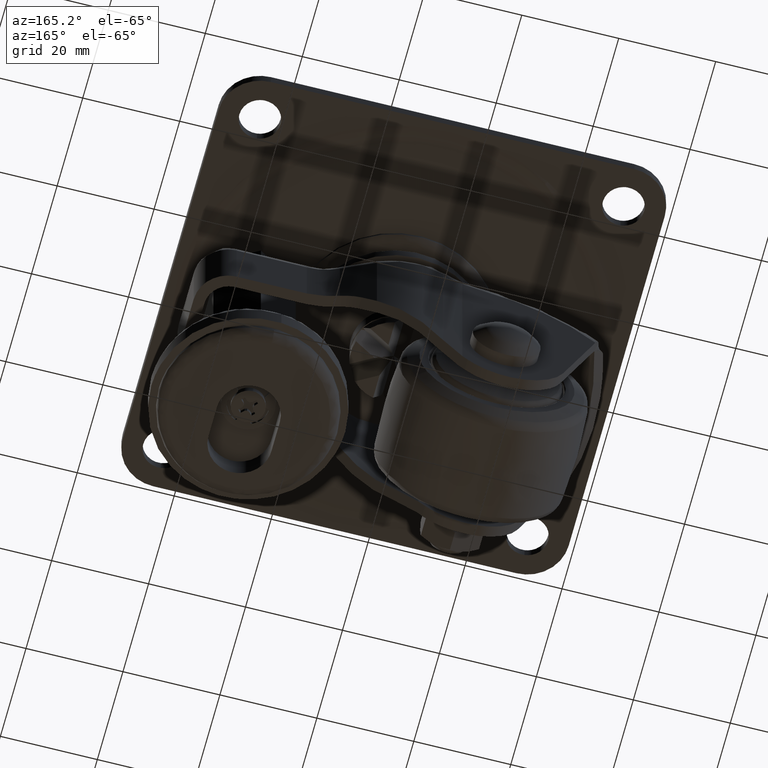
[diagram: clean part render]
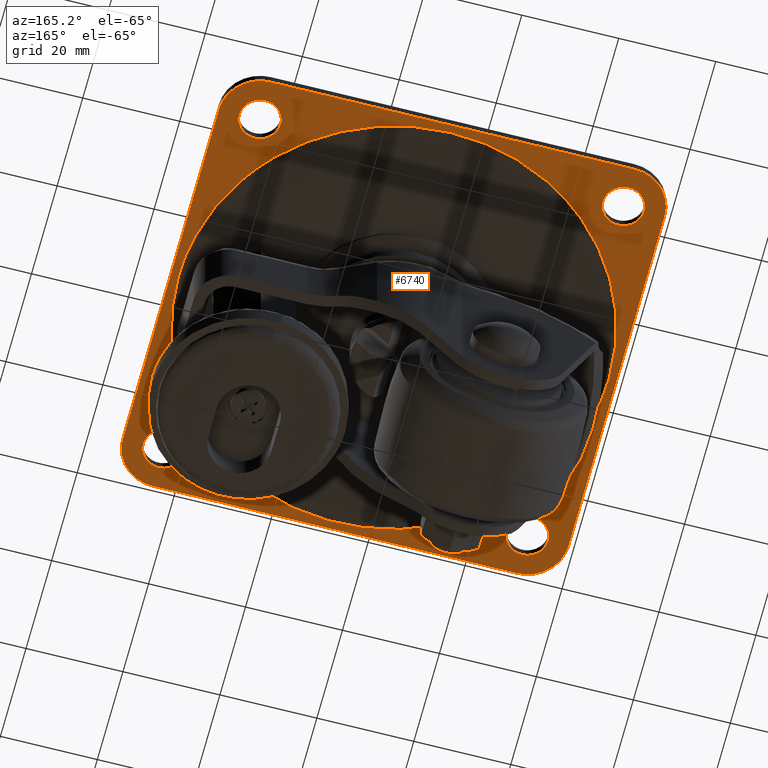
[diagram: same view with one face highlighted and labeled with its STEP entity id]
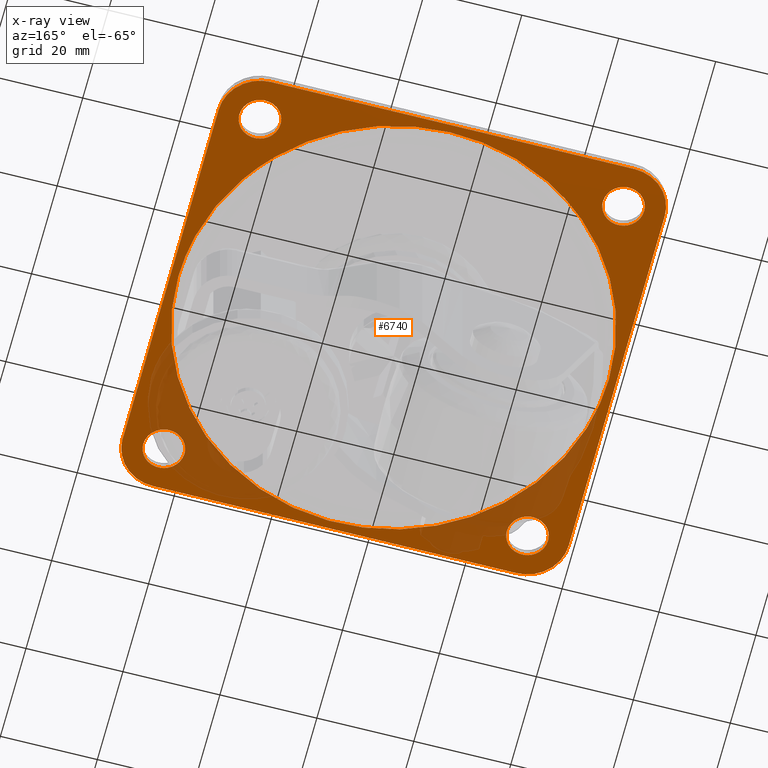
[diagram: x-ray of the same camera — body ghosted, the highlighted face saturated]
A machine part, auxiliary view. The second image highlights one B-rep face of the part: STEP entity #6740.
The next image is the same camera in x-ray: the body ghosted, the highlighted face saturated — about 24% of this face is hidden behind the body in this view.
In plain terms, the highlighted face is a freeform B-spline surface patch.
Its self-contained STEP definition (entity closure, byte-faithful):
#3927=CARTESIAN_POINT('',(-37.240543706807827,41.742072893282597,-2.299999999999971));
#3928=VERTEX_POINT('',#3927);
#3934=CARTESIAN_POINT('',(-33.250000000000000,37.500000000000000,-2.299999999999970));
#3935=VERTEX_POINT('',#3934);
#3936=CARTESIAN_POINT('',(-33.250000000000000,37.500000000000000,-2.299999999999970));
#3937=CARTESIAN_POINT('',(-33.250000000000007,41.498000784030012,-2.299999999999970));
#3938=CARTESIAN_POINT('',(-37.240543706807827,41.742072893282604,-2.299999999999971));
#3946=(BOUNDED_CURVE()B_SPLINE_CURVE(2,(#3936,#3937,#3938),.UNSPECIFIED.,.F.,.U.)B_SPLINE_CURVE_WITH_KNOTS((3,3),(0.500000000000000,0.739332962228218),.UNSPECIFIED.)CURVE()GEOMETRIC_REPRESENTATION_ITEM()RATIONAL_B_SPLINE_CURVE((1.0,0.719603993299275,0.976072041643733))REPRESENTATION_ITEM(''));
#3947=EDGE_CURVE('',#3935,#3928,#3946,.T.);
#3949=CARTESIAN_POINT('',(-38.001645497380359,33.279709512965013,-2.299999999999970));
#3950=VERTEX_POINT('',#3949);
#3951=CARTESIAN_POINT('',(-38.001645497380359,33.279709512965020,-2.299999999999969));
#3952=CARTESIAN_POINT('',(-37.751702508610691,33.250000000000000,-2.299999999999970));
#3953=CARTESIAN_POINT('',(-37.500000000000000,33.250000000000000,-2.299999999999970));
#3954=CARTESIAN_POINT('',(-33.250000000000007,33.250000000000007,-2.299999999999970));
#3955=CARTESIAN_POINT('',(-33.250000000000000,37.500000000000000,-2.299999999999970));
#3963=(BOUNDED_CURVE()B_SPLINE_CURVE(2,(#3951,#3952,#3953,#3954,#3955),.UNSPECIFIED.,.F.,.U.)B_SPLINE_CURVE_WITH_KNOTS((3,2,3),(0.229562473508506,0.250000000000000,0.500000000000000),.UNSPECIFIED.)CURVE()GEOMETRIC_REPRESENTATION_ITEM()RATIONAL_B_SPLINE_CURVE((0.956026754173894,0.976055948325284,1.0,0.707106781186548,1.0))REPRESENTATION_ITEM(''));
#3964=EDGE_CURVE('',#3950,#3935,#3963,.T.);
#4008=CARTESIAN_POINT('',(-41.749999999999993,37.500000000000000,-2.299999999999970));
#4009=VERTEX_POINT('',#4008);
#4010=CARTESIAN_POINT('',(-41.749999999999993,37.500000000000000,-2.299999999999970));
#4011=CARTESIAN_POINT('',(-41.750000000000000,33.725258264867243,-2.299999999999970));
#4012=CARTESIAN_POINT('',(-38.001645497380352,33.279709512965013,-2.299999999999970));
#4020=(BOUNDED_CURVE()B_SPLINE_CURVE(2,(#4010,#4011,#4012),.UNSPECIFIED.,.F.,.U.)B_SPLINE_CURVE_WITH_KNOTS((3,3),(0.0,0.229562473508506),.UNSPECIFIED.)CURVE()GEOMETRIC_REPRESENTATION_ITEM()RATIONAL_B_SPLINE_CURVE((1.0,0.731050832861263,0.956026754173894))REPRESENTATION_ITEM(''));
#4021=EDGE_CURVE('',#4009,#3950,#4020,.T.);
#4023=CARTESIAN_POINT('',(-37.240543706807827,41.742072893282597,-2.299999999999971));
#4024=CARTESIAN_POINT('',(-37.370150755811487,41.749999999999986,-2.299999999999971));
#4025=CARTESIAN_POINT('',(-37.500000000000000,41.749999999999993,-2.299999999999970));
#4026=CARTESIAN_POINT('',(-41.750000000000000,41.750000000000000,-2.299999999999970));
#4027=CARTESIAN_POINT('',(-41.749999999999993,37.500000000000000,-2.299999999999970));
#4035=(BOUNDED_CURVE()B_SPLINE_CURVE(2,(#4023,#4024,#4025,#4026,#4027),.UNSPECIFIED.,.F.,.U.)B_SPLINE_CURVE_WITH_KNOTS((3,2,3),(0.739332962228217,0.750000000000000,1.0),.UNSPECIFIED.)CURVE()GEOMETRIC_REPRESENTATION_ITEM()RATIONAL_B_SPLINE_CURVE((0.976072041643731,0.987502787887272,1.0,0.707106781186548,1.0))REPRESENTATION_ITEM(''));
#4036=EDGE_CURVE('',#3928,#4009,#4035,.T.);
#4113=CARTESIAN_POINT('',(37.759456293192173,41.742072893282590,-2.299999999999971));
#4114=VERTEX_POINT('',#4113);
#4120=CARTESIAN_POINT('',(41.749999999999993,37.500000000000000,-2.299999999999970));
#4121=VERTEX_POINT('',#4120);
#4122=CARTESIAN_POINT('',(41.749999999999993,37.500000000000000,-2.299999999999970));
#4123=CARTESIAN_POINT('',(41.749999999999993,41.498000784030012,-2.299999999999970));
#4124=CARTESIAN_POINT('',(37.759456293192173,41.742072893282590,-2.299999999999971));
#4132=(BOUNDED_CURVE()B_SPLINE_CURVE(2,(#4122,#4123,#4124),.UNSPECIFIED.,.F.,.U.)B_SPLINE_CURVE_WITH_KNOTS((3,3),(0.500000000000000,0.739332962228218),.UNSPECIFIED.)CURVE()GEOMETRIC_REPRESENTATION_ITEM()RATIONAL_B_SPLINE_CURVE((1.0,0.719603993299275,0.976072041643733))REPRESENTATION_ITEM(''));
#4133=EDGE_CURVE('',#4121,#4114,#4132,.T.);
#4135=CARTESIAN_POINT('',(36.998354502619648,33.279709512965013,-2.299999999999970));
#4136=VERTEX_POINT('',#4135);
#4137=CARTESIAN_POINT('',(36.998354502619648,33.279709512965020,-2.299999999999969));
#4138=CARTESIAN_POINT('',(37.248297491389302,33.250000000000000,-2.299999999999970));
#4139=CARTESIAN_POINT('',(37.500000000000000,33.250000000000000,-2.299999999999970));
#4140=CARTESIAN_POINT('',(41.750000000000000,33.250000000000007,-2.299999999999970));
#4141=CARTESIAN_POINT('',(41.749999999999993,37.500000000000000,-2.299999999999970));
#4149=(BOUNDED_CURVE()B_SPLINE_CURVE(2,(#4137,#4138,#4139,#4140,#4141),.UNSPECIFIED.,.F.,.U.)B_SPLINE_CURVE_WITH_KNOTS((3,2,3),(0.229562473508506,0.250000000000000,0.500000000000000),.UNSPECIFIED.)CURVE()GEOMETRIC_REPRESENTATION_ITEM()RATIONAL_B_SPLINE_CURVE((0.956026754173894,0.976055948325284,1.0,0.707106781186548,1.0))REPRESENTATION_ITEM(''));
#4150=EDGE_CURVE('',#4136,#4121,#4149,.T.);
#4194=CARTESIAN_POINT('',(33.250000000000000,37.500000000000000,-2.299999999999970));
#4195=VERTEX_POINT('',#4194);
#4196=CARTESIAN_POINT('',(33.250000000000000,37.500000000000000,-2.299999999999970));
#4197=CARTESIAN_POINT('',(33.250000000000000,33.725258264867243,-2.299999999999970));
#4198=CARTESIAN_POINT('',(36.998354502619655,33.279709512965013,-2.299999999999970));
#4206=(BOUNDED_CURVE()B_SPLINE_CURVE(2,(#4196,#4197,#4198),.UNSPECIFIED.,.F.,.U.)B_SPLINE_CURVE_WITH_KNOTS((3,3),(0.0,0.229562473508506),.UNSPECIFIED.)CURVE()GEOMETRIC_REPRESENTATION_ITEM()RATIONAL_B_SPLINE_CURVE((1.0,0.731050832861263,0.956026754173894))REPRESENTATION_ITEM(''));
#4207=EDGE_CURVE('',#4195,#4136,#4206,.T.);
#4209=CARTESIAN_POINT('',(37.759456293192173,41.742072893282590,-2.299999999999971));
#4210=CARTESIAN_POINT('',(37.629849244188506,41.750000000000000,-2.299999999999970));
#4211=CARTESIAN_POINT('',(37.500000000000000,41.749999999999993,-2.299999999999970));
#4212=CARTESIAN_POINT('',(33.250000000000007,41.750000000000000,-2.299999999999970));
#4213=CARTESIAN_POINT('',(33.250000000000000,37.500000000000000,-2.299999999999970));
#4221=(BOUNDED_CURVE()B_SPLINE_CURVE(2,(#4209,#4210,#4211,#4212,#4213),.UNSPECIFIED.,.F.,.U.)B_SPLINE_CURVE_WITH_KNOTS((3,2,3),(0.739332962228218,0.750000000000000,1.0),.UNSPECIFIED.)CURVE()GEOMETRIC_REPRESENTATION_ITEM()RATIONAL_B_SPLINE_CURVE((0.976072041643732,0.987502787887272,1.0,0.707106781186548,1.0))REPRESENTATION_ITEM(''));
#4222=EDGE_CURVE('',#4114,#4195,#4221,.T.);
#4299=CARTESIAN_POINT('',(37.759456293192173,-33.257927106717403,-2.299999999999971));
#4300=VERTEX_POINT('',#4299);
#4306=CARTESIAN_POINT('',(41.749999999999993,-37.500000000000000,-2.299999999999970));
#4307=VERTEX_POINT('',#4306);
#4308=CARTESIAN_POINT('',(41.749999999999993,-37.500000000000000,-2.299999999999970));
#4309=CARTESIAN_POINT('',(41.749999999999993,-33.501999215969995,-2.299999999999970));
#4310=CARTESIAN_POINT('',(37.759456293192173,-33.257927106717403,-2.299999999999971));
#4318=(BOUNDED_CURVE()B_SPLINE_CURVE(2,(#4308,#4309,#4310),.UNSPECIFIED.,.F.,.U.)B_SPLINE_CURVE_WITH_KNOTS((3,3),(0.500000000000000,0.739332962228218),.UNSPECIFIED.)CURVE()GEOMETRIC_REPRESENTATION_ITEM()RATIONAL_B_SPLINE_CURVE((1.0,0.719603993299275,0.976072041643733))REPRESENTATION_ITEM(''));
#4319=EDGE_CURVE('',#4307,#4300,#4318,.T.);
#4321=CARTESIAN_POINT('',(36.998354502619648,-41.720290487034987,-2.299999999999970));
#4322=VERTEX_POINT('',#4321);
#4323=CARTESIAN_POINT('',(36.998354502619648,-41.720290487034994,-2.299999999999970));
#4324=CARTESIAN_POINT('',(37.248297491389309,-41.749999999999993,-2.299999999999970));
#4325=CARTESIAN_POINT('',(37.500000000000000,-41.749999999999993,-2.299999999999970));
#4326=CARTESIAN_POINT('',(41.750000000000000,-41.750000000000000,-2.299999999999970));
#4327=CARTESIAN_POINT('',(41.749999999999993,-37.500000000000000,-2.299999999999970));
#4335=(BOUNDED_CURVE()B_SPLINE_CURVE(2,(#4323,#4324,#4325,#4326,#4327),.UNSPECIFIED.,.F.,.U.)B_SPLINE_CURVE_WITH_KNOTS((3,2,3),(0.229562473508506,0.250000000000000,0.500000000000000),.UNSPECIFIED.)CURVE()GEOMETRIC_REPRESENTATION_ITEM()RATIONAL_B_SPLINE_CURVE((0.956026754173894,0.976055948325284,1.0,0.707106781186548,1.0))REPRESENTATION_ITEM(''));
#4336=EDGE_CURVE('',#4322,#4307,#4335,.T.);
#4380=CARTESIAN_POINT('',(33.250000000000000,-37.500000000000000,-2.299999999999970));
#4381=VERTEX_POINT('',#4380);
#4382=CARTESIAN_POINT('',(33.250000000000000,-37.500000000000000,-2.299999999999970));
#4383=CARTESIAN_POINT('',(33.250000000000007,-41.274741735132757,-2.299999999999970));
#4384=CARTESIAN_POINT('',(36.998354502619648,-41.720290487034987,-2.299999999999970));
#4392=(BOUNDED_CURVE()B_SPLINE_CURVE(2,(#4382,#4383,#4384),.UNSPECIFIED.,.F.,.U.)B_SPLINE_CURVE_WITH_KNOTS((3,3),(0.0,0.229562473508506),.UNSPECIFIED.)CURVE()GEOMETRIC_REPRESENTATION_ITEM()RATIONAL_B_SPLINE_CURVE((1.0,0.731050832861263,0.956026754173894))REPRESENTATION_ITEM(''));
#4393=EDGE_CURVE('',#4381,#4322,#4392,.T.);
#4395=CARTESIAN_POINT('',(37.759456293192180,-33.257927106717396,-2.299999999999970));
#4396=CARTESIAN_POINT('',(37.629849244188499,-33.249999999999993,-2.299999999999970));
#4397=CARTESIAN_POINT('',(37.500000000000000,-33.250000000000000,-2.299999999999970));
#4398=CARTESIAN_POINT('',(33.250000000000007,-33.250000000000007,-2.299999999999970));
#4399=CARTESIAN_POINT('',(33.250000000000000,-37.500000000000000,-2.299999999999970));
#4407=(BOUNDED_CURVE()B_SPLINE_CURVE(2,(#4395,#4396,#4397,#4398,#4399),.UNSPECIFIED.,.F.,.U.)B_SPLINE_CURVE_WITH_KNOTS((3,2,3),(0.739332962228218,0.750000000000000,1.0),.UNSPECIFIED.)CURVE()GEOMETRIC_REPRESENTATION_ITEM()RATIONAL_B_SPLINE_CURVE((0.976072041643731,0.987502787887272,1.0,0.707106781186548,1.0))REPRESENTATION_ITEM(''));
#4408=EDGE_CURVE('',#4300,#4381,#4407,.T.);
#4485=CARTESIAN_POINT('',(-37.240543706807827,-33.257927106717403,-2.299999999999971));
#4486=VERTEX_POINT('',#4485);
#4492=CARTESIAN_POINT('',(-33.250000000000000,-37.500000000000000,-2.299999999999970));
#4493=VERTEX_POINT('',#4492);
#4494=CARTESIAN_POINT('',(-33.250000000000000,-37.500000000000000,-2.299999999999970));
#4495=CARTESIAN_POINT('',(-33.250000000000007,-33.501999215969995,-2.299999999999970));
#4496=CARTESIAN_POINT('',(-37.240543706807827,-33.257927106717403,-2.299999999999971));
#4504=(BOUNDED_CURVE()B_SPLINE_CURVE(2,(#4494,#4495,#4496),.UNSPECIFIED.,.F.,.U.)B_SPLINE_CURVE_WITH_KNOTS((3,3),(0.500000000000000,0.739332962228218),.UNSPECIFIED.)CURVE()GEOMETRIC_REPRESENTATION_ITEM()RATIONAL_B_SPLINE_CURVE((1.0,0.719603993299275,0.976072041643733))REPRESENTATION_ITEM(''));
#4505=EDGE_CURVE('',#4493,#4486,#4504,.T.);
#4507=CARTESIAN_POINT('',(-38.001645497380352,-41.720290487034987,-2.299999999999970));
#4508=VERTEX_POINT('',#4507);
#4509=CARTESIAN_POINT('',(-38.001645497380352,-41.720290487034994,-2.299999999999969));
#4510=CARTESIAN_POINT('',(-37.751702508610691,-41.749999999999993,-2.299999999999970));
#4511=CARTESIAN_POINT('',(-37.500000000000000,-41.749999999999993,-2.299999999999970));
#4512=CARTESIAN_POINT('',(-33.250000000000007,-41.750000000000000,-2.299999999999970));
#4513=CARTESIAN_POINT('',(-33.250000000000000,-37.500000000000000,-2.299999999999970));
#4521=(BOUNDED_CURVE()B_SPLINE_CURVE(2,(#4509,#4510,#4511,#4512,#4513),.UNSPECIFIED.,.F.,.U.)B_SPLINE_CURVE_WITH_KNOTS((3,2,3),(0.229562473508506,0.250000000000000,0.500000000000000),.UNSPECIFIED.)CURVE()GEOMETRIC_REPRESENTATION_ITEM()RATIONAL_B_SPLINE_CURVE((0.956026754173894,0.976055948325284,1.0,0.707106781186548,1.0))REPRESENTATION_ITEM(''));
#4522=EDGE_CURVE('',#4508,#4493,#4521,.T.);
#4566=CARTESIAN_POINT('',(-41.749999999999993,-37.500000000000000,-2.299999999999970));
#4567=VERTEX_POINT('',#4566);
#4568=CARTESIAN_POINT('',(-41.749999999999993,-37.500000000000000,-2.299999999999970));
#4569=CARTESIAN_POINT('',(-41.750000000000000,-41.274741735132736,-2.299999999999970));
#4570=CARTESIAN_POINT('',(-38.001645497380352,-41.720290487034987,-2.299999999999970));
#4578=(BOUNDED_CURVE()B_SPLINE_CURVE(2,(#4568,#4569,#4570),.UNSPECIFIED.,.F.,.U.)B_SPLINE_CURVE_WITH_KNOTS((3,3),(0.0,0.229562473508506),.UNSPECIFIED.)CURVE()GEOMETRIC_REPRESENTATION_ITEM()RATIONAL_B_SPLINE_CURVE((1.0,0.731050832861263,0.956026754173894))REPRESENTATION_ITEM(''));
#4579=EDGE_CURVE('',#4567,#4508,#4578,.T.);
#4581=CARTESIAN_POINT('',(-37.240543706807827,-33.257927106717403,-2.299999999999971));
#4582=CARTESIAN_POINT('',(-37.370150755811487,-33.249999999999993,-2.299999999999971));
#4583=CARTESIAN_POINT('',(-37.500000000000000,-33.250000000000000,-2.299999999999970));
#4584=CARTESIAN_POINT('',(-41.750000000000000,-33.250000000000007,-2.299999999999970));
#4585=CARTESIAN_POINT('',(-41.749999999999993,-37.500000000000000,-2.299999999999970));
#4593=(BOUNDED_CURVE()B_SPLINE_CURVE(2,(#4581,#4582,#4583,#4584,#4585),.UNSPECIFIED.,.F.,.U.)B_SPLINE_CURVE_WITH_KNOTS((3,2,3),(0.739332962228217,0.750000000000000,1.0),.UNSPECIFIED.)CURVE()GEOMETRIC_REPRESENTATION_ITEM()RATIONAL_B_SPLINE_CURVE((0.976072041643731,0.987502787887272,1.0,0.707106781186548,1.0))REPRESENTATION_ITEM(''));
#4594=EDGE_CURVE('',#4486,#4567,#4593,.T.);
#6037=CARTESIAN_POINT('',(37.635008808177112,23.588873636775940,-2.300000000203007));
#6038=VERTEX_POINT('',#6037);
#6052=CARTESIAN_POINT('',(44.416537995183148,0.0,-2.300000000000000));
#6053=VERTEX_POINT('',#6052);
#6054=CARTESIAN_POINT('',(37.635008808177105,23.588873636775944,-2.300000000203008));
#6055=CARTESIAN_POINT('',(44.416537995183148,12.769242542962733,-2.300000000000000));
#6056=CARTESIAN_POINT('',(44.416537995183148,0.0,-2.300000000000000));
#6064=(BOUNDED_CURVE()B_SPLINE_CURVE(2,(#6054,#6055,#6056),.UNSPECIFIED.,.F.,.U.)B_SPLINE_CURVE_WITH_KNOTS((3,3),(0.409173271053662,0.500000000000000),.UNSPECIFIED.)CURVE()GEOMETRIC_REPRESENTATION_ITEM()RATIONAL_B_SPLINE_CURVE((0.864498809753946,0.893589868018440,1.0))REPRESENTATION_ITEM(''));
#6065=EDGE_CURVE('',#6038,#6053,#6064,.T.);
#6067=CARTESIAN_POINT('',(-44.416537995183148,0.0,-2.300000000000000));
#6068=VERTEX_POINT('',#6067);
#6069=CARTESIAN_POINT('',(44.416537995183148,0.0,-2.300000000000000));
#6070=CARTESIAN_POINT('',(44.416537995183148,-44.416537995183148,-2.299999999999999));
#6071=CARTESIAN_POINT('',(0.0,-44.416537995183148,-2.300000000000000));
#6072=CARTESIAN_POINT('',(-44.416537995183148,-44.416537995183148,-2.299999999999999));
#6073=CARTESIAN_POINT('',(-44.416537995183148,0.0,-2.300000000000000));
#6081=(BOUNDED_CURVE()B_SPLINE_CURVE(2,(#6069,#6070,#6071,#6072,#6073),.UNSPECIFIED.,.F.,.U.)B_SPLINE_CURVE_WITH_KNOTS((3,2,3),(0.500000000000000,0.750000000000000,1.0),.UNSPECIFIED.)CURVE()GEOMETRIC_REPRESENTATION_ITEM()RATIONAL_B_SPLINE_CURVE((1.0,0.707106781186548,1.0,0.707106781186548,1.0))REPRESENTATION_ITEM(''));
#6082=EDGE_CURVE('',#6053,#6068,#6081,.T.);
#6084=CARTESIAN_POINT('',(-21.397830369844240,38.922508949128940,-2.300000000272467));
#6085=VERTEX_POINT('',#6084);
#6086=CARTESIAN_POINT('',(-44.416537995183148,0.0,-2.300000000000000));
#6087=CARTESIAN_POINT('',(-44.416537995183141,26.267867345169027,-2.299999999999999));
#6088=CARTESIAN_POINT('',(-21.397830369844236,38.922508949128947,-2.300000000272468));
#6096=(BOUNDED_CURVE()B_SPLINE_CURVE(2,(#6086,#6087,#6088),.UNSPECIFIED.,.F.,.U.)B_SPLINE_CURVE_WITH_KNOTS((3,3),(0.0,0.167949183896418),.UNSPECIFIED.)CURVE()GEOMETRIC_REPRESENTATION_ITEM()RATIONAL_B_SPLINE_CURVE((1.0,0.803235291725943,0.870842360845843))REPRESENTATION_ITEM(''));
#6097=EDGE_CURVE('',#6068,#6085,#6096,.T.);
#6180=CARTESIAN_POINT('',(-21.397830369844236,38.922508949128947,-2.300000000272468));
#6181=CARTESIAN_POINT('',(-11.404228635820935,44.416537995183141,-2.300000000000000));
#6182=CARTESIAN_POINT('',(0.0,44.416537995183148,-2.300000000000000));
#6183=CARTESIAN_POINT('',(24.580643783653230,44.416537995183141,-2.299999999999999));
#6184=CARTESIAN_POINT('',(37.635008808177112,23.588873636775947,-2.300000000203007));
#6192=(BOUNDED_CURVE()B_SPLINE_CURVE(2,(#6180,#6181,#6182,#6183,#6184),.UNSPECIFIED.,.F.,.U.)B_SPLINE_CURVE_WITH_KNOTS((3,2,3),(0.167949183896418,0.250000000000000,0.409173271053662),.UNSPECIFIED.)CURVE()GEOMETRIC_REPRESENTATION_ITEM()RATIONAL_B_SPLINE_CURVE((0.870842360845843,0.903871489460605,1.0,0.813516913168108,0.864498809753946))REPRESENTATION_ITEM(''));
#6193=EDGE_CURVE('',#6085,#6038,#6192,.T.);
#6385=CARTESIAN_POINT('',(37.500000000000000,46.0,-2.299999999999970));
#6386=VERTEX_POINT('',#6385);
#6392=CARTESIAN_POINT('',(-37.500000000000000,46.0,-2.299999999999970));
#6393=VERTEX_POINT('',#6392);
#6394=CARTESIAN_POINT('',(37.500000000000000,46.0,-2.299999999999970));
#6395=CARTESIAN_POINT('',(-37.500000000000000,46.0,-2.299999999999970));
#6396=QUASI_UNIFORM_CURVE('',1,(#6394,#6395),.UNSPECIFIED.,.F.,.U.);
#6397=EDGE_CURVE('',#6386,#6393,#6396,.T.);
#6423=CARTESIAN_POINT('',(-46.0,37.500000000000000,-2.299999999999970));
#6424=VERTEX_POINT('',#6423);
#6425=CARTESIAN_POINT('',(-37.500000000000000,46.0,-2.299999999999970));
#6426=CARTESIAN_POINT('',(-46.000000000000007,46.000000000000007,-2.299999999999970));
#6427=CARTESIAN_POINT('',(-46.0,37.500000000000000,-2.299999999999970));
#6435=(BOUNDED_CURVE()B_SPLINE_CURVE(2,(#6425,#6426,#6427),.UNSPECIFIED.,.F.,.U.)CURVE()GEOMETRIC_REPRESENTATION_ITEM()QUASI_UNIFORM_CURVE()RATIONAL_B_SPLINE_CURVE((1.0,0.707106781186548,1.0))REPRESENTATION_ITEM(''));
#6436=EDGE_CURVE('',#6393,#6424,#6435,.T.);
#6453=CARTESIAN_POINT('',(-46.0,-37.500000000000000,-2.299999999999970));
#6454=VERTEX_POINT('',#6453);
#6455=CARTESIAN_POINT('',(-46.0,37.500000000000000,-2.299999999999970));
#6456=CARTESIAN_POINT('',(-46.0,-37.500000000000000,-2.299999999999970));
#6457=QUASI_UNIFORM_CURVE('',1,(#6455,#6456),.UNSPECIFIED.,.F.,.U.);
#6458=EDGE_CURVE('',#6424,#6454,#6457,.T.);
#6484=CARTESIAN_POINT('',(-37.500000000000000,-46.0,-2.299999999999970));
#6485=VERTEX_POINT('',#6484);
#6486=CARTESIAN_POINT('',(-46.0,-37.500000000000000,-2.299999999999970));
#6487=CARTESIAN_POINT('',(-46.000000000000007,-46.000000000000007,-2.299999999999970));
#6488=CARTESIAN_POINT('',(-37.500000000000000,-46.0,-2.299999999999970));
#6496=(BOUNDED_CURVE()B_SPLINE_CURVE(2,(#6486,#6487,#6488),.UNSPECIFIED.,.F.,.U.)CURVE()GEOMETRIC_REPRESENTATION_ITEM()QUASI_UNIFORM_CURVE()RATIONAL_B_SPLINE_CURVE((1.0,0.707106781186548,1.0))REPRESENTATION_ITEM(''));
#6497=EDGE_CURVE('',#6454,#6485,#6496,.T.);
#6514=CARTESIAN_POINT('',(37.500000000000000,-46.0,-2.299999999999970));
#6515=VERTEX_POINT('',#6514);
#6516=CARTESIAN_POINT('',(-37.500000000000000,-46.0,-2.299999999999970));
#6517=CARTESIAN_POINT('',(37.500000000000000,-46.0,-2.299999999999970));
#6518=QUASI_UNIFORM_CURVE('',1,(#6516,#6517),.UNSPECIFIED.,.F.,.U.);
#6519=EDGE_CURVE('',#6485,#6515,#6518,.T.);
#6545=CARTESIAN_POINT('',(46.0,-37.500000000000000,-2.299999999999970));
#6546=VERTEX_POINT('',#6545);
#6547=CARTESIAN_POINT('',(37.500000000000000,-46.0,-2.299999999999970));
#6548=CARTESIAN_POINT('',(46.000000000000007,-46.000000000000007,-2.299999999999970));
#6549=CARTESIAN_POINT('',(46.0,-37.500000000000000,-2.299999999999970));
#6557=(BOUNDED_CURVE()B_SPLINE_CURVE(2,(#6547,#6548,#6549),.UNSPECIFIED.,.F.,.U.)CURVE()GEOMETRIC_REPRESENTATION_ITEM()QUASI_UNIFORM_CURVE()RATIONAL_B_SPLINE_CURVE((1.0,0.707106781186548,1.0))REPRESENTATION_ITEM(''));
#6558=EDGE_CURVE('',#6515,#6546,#6557,.T.);
#6575=CARTESIAN_POINT('',(46.0,37.500000000000000,-2.299999999999970));
#6576=VERTEX_POINT('',#6575);
#6577=CARTESIAN_POINT('',(46.0,-37.500000000000000,-2.299999999999970));
#6578=CARTESIAN_POINT('',(46.0,37.500000000000000,-2.299999999999970));
#6579=QUASI_UNIFORM_CURVE('',1,(#6577,#6578),.UNSPECIFIED.,.F.,.U.);
#6580=EDGE_CURVE('',#6546,#6576,#6579,.T.);
#6606=CARTESIAN_POINT('',(46.0,37.500000000000000,-2.299999999999970));
#6607=CARTESIAN_POINT('',(46.000000000000007,46.000000000000007,-2.299999999999970));
#6608=CARTESIAN_POINT('',(37.500000000000000,46.0,-2.299999999999970));
#6616=(BOUNDED_CURVE()B_SPLINE_CURVE(2,(#6606,#6607,#6608),.UNSPECIFIED.,.F.,.U.)CURVE()GEOMETRIC_REPRESENTATION_ITEM()QUASI_UNIFORM_CURVE()RATIONAL_B_SPLINE_CURVE((1.0,0.707106781186548,1.0))REPRESENTATION_ITEM(''));
#6617=EDGE_CURVE('',#6576,#6386,#6616,.T.);
#6695=CARTESIAN_POINT('',(-50.595399821686172,50.595399821686172,-2.300000000000000));
#6696=CARTESIAN_POINT('',(50.595402289318450,50.595399821686172,-2.300000000000000));
#6697=CARTESIAN_POINT('',(-50.595399821686172,-50.595402289318457,-2.300000000000000));
#6698=CARTESIAN_POINT('',(50.595402289318450,-50.595402289318457,-2.300000000000000));
#6699=B_SPLINE_SURFACE_WITH_KNOTS('',1,1,((#6695,#6697),(#6696,#6698)),.UNSPECIFIED.,.F.,.F.,.U.,(2,2),(2,2),(0.0,101.190802111004600),(0.0,101.190802111004600),.UNSPECIFIED.);
#6700=ORIENTED_EDGE('',*,*,#6397,.F.);
#6701=ORIENTED_EDGE('',*,*,#6617,.F.);
#6702=ORIENTED_EDGE('',*,*,#6580,.F.);
#6703=ORIENTED_EDGE('',*,*,#6558,.F.);
#6704=ORIENTED_EDGE('',*,*,#6519,.F.);
#6705=ORIENTED_EDGE('',*,*,#6497,.F.);
#6706=ORIENTED_EDGE('',*,*,#6458,.F.);
#6707=ORIENTED_EDGE('',*,*,#6436,.F.);
#6708=EDGE_LOOP('',(#6700,#6701,#6702,#6703,#6704,#6705,#6706,#6707));
#6709=FACE_OUTER_BOUND('',#6708,.T.);
#6710=ORIENTED_EDGE('',*,*,#6082,.F.);
#6711=ORIENTED_EDGE('',*,*,#6065,.F.);
#6712=ORIENTED_EDGE('',*,*,#6193,.F.);
#6713=ORIENTED_EDGE('',*,*,#6097,.F.);
#6714=EDGE_LOOP('',(#6710,#6711,#6712,#6713));
#6715=FACE_BOUND('',#6714,.T.);
#6716=ORIENTED_EDGE('',*,*,#4505,.T.);
#6717=ORIENTED_EDGE('',*,*,#4594,.T.);
#6718=ORIENTED_EDGE('',*,*,#4579,.T.);
#6719=ORIENTED_EDGE('',*,*,#4522,.T.);
#6720=EDGE_LOOP('',(#6716,#6717,#6718,#6719));
#6721=FACE_BOUND('',#6720,.T.);
#6722=ORIENTED_EDGE('',*,*,#4319,.T.);
#6723=ORIENTED_EDGE('',*,*,#4408,.T.);
#6724=ORIENTED_EDGE('',*,*,#4393,.T.);
#6725=ORIENTED_EDGE('',*,*,#4336,.T.);
#6726=EDGE_LOOP('',(#6722,#6723,#6724,#6725));
#6727=FACE_BOUND('',#6726,.T.);
#6728=ORIENTED_EDGE('',*,*,#4133,.T.);
#6729=ORIENTED_EDGE('',*,*,#4222,.T.);
#6730=ORIENTED_EDGE('',*,*,#4207,.T.);
#6731=ORIENTED_EDGE('',*,*,#4150,.T.);
#6732=EDGE_LOOP('',(#6728,#6729,#6730,#6731));
#6733=FACE_BOUND('',#6732,.T.);
#6734=ORIENTED_EDGE('',*,*,#3947,.T.);
#6735=ORIENTED_EDGE('',*,*,#4036,.T.);
#6736=ORIENTED_EDGE('',*,*,#4021,.T.);
#6737=ORIENTED_EDGE('',*,*,#3964,.T.);
#6738=EDGE_LOOP('',(#6734,#6735,#6736,#6737));
#6739=FACE_BOUND('',#6738,.T.);
#6740=ADVANCED_FACE('',(#6709,#6715,#6721,#6727,#6733,#6739),#6699,.T.);